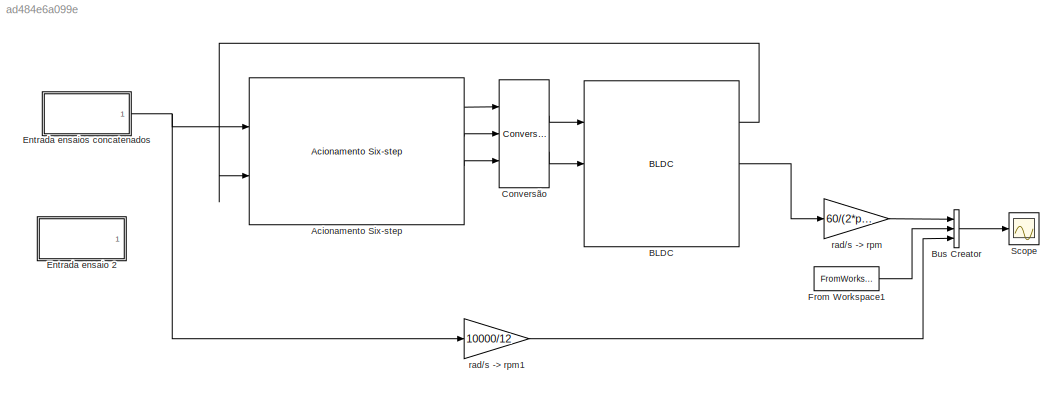
MODEL slx_ad484e6a099e
KIND model
BLOCK [Reference] Acionamento Six-step  REF=BLDC/Acionamento Six-step
  P = 8
  Ports = [2, 4]
  SourceBlock = BLDC/Acionamento Six-step
  SourceType = Acionamento six-step
BLOCK [Reference] BLDC  REF=BLDC/BLDC
  F_slip = 0
  F_stick = 0
  J = 3.84*10^-7
  Kd = 0
  Ke = 11.3*10^-3
  Kt = 11.3*10^-3
  L = 2.35*10^-3/sqrt(3)
  P = 8
  Ports = [3, 3]
  R = 23.9/sqrt(3)
  SourceBlock = BLDC/BLDC
  SourceType = Simulador de um motor BLDC
  default_fcem = on
  fcem_a = fcem_a
  fcem_b = fcem_b
  fcem_c = fcem_c
BLOCK [BusCreator] Bus Creator
  DisplayOption = bar
  Inputs = 3
  Ports = [3, 1]
BLOCK [Reference] Conversão  REF=BLDC/Conversão
  Ports = [3, 2]
  SourceBlock = BLDC/Conversão
  SourceType = SubSystem
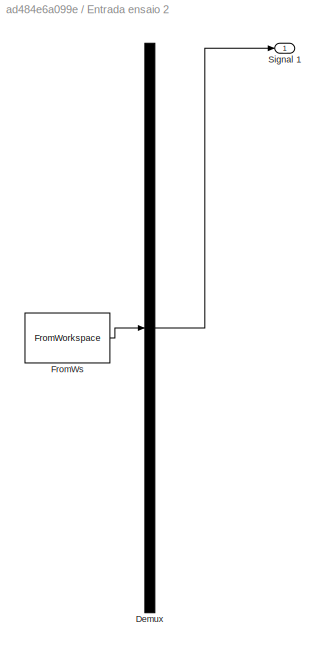
BLOCK [SubSystem] Entrada ensaio 2
  ClipboardFcn = sigbuilder_block('clipboard');
  CloseFcn = sigbuilder_block('close');
  ContinueFcn = sigbuilder_block('continue');
  CopyFcn = sigbuilder_block('copy');
  DeleteFcn = sigbuilder_block('delete');
  FunctionWithSeparateData = off
  LoadFcn = sigbuilder_block('load');
  MaskHideContents = on
  MinAlgLoopOccurrences = off
  ModelCloseFcn = sigbuilder_block('modelClose');
  NameChangeFcn = sigbuilder_block('namechange');
  Opaque = off
  OpenFcn = sigbuilder_block('open',[0 30 1440 723 ]);
  PauseFcn = sigbuilder_block('pause');
  Ports = [0, 1]
  PreSaveFcn = sigbuilder_block('preSave');
  PropExecContextOutsideSubsystem = off
  RTWSystemCode = Auto
  RequestExecContextInheritance = off
  StartFcn = sigbuilder_block('start');
  StopFcn = sigbuilder_block('stop');
  Tag = STV Subsys
BLOCK [Demux] Entrada ensaio 2/Demux
  Outputs = 1
  Ports = [1, 1]
  Tag = STV Demux
BLOCK [FromWorkspace] Entrada ensaio 2/FromWs
  SampleTime = 0
  Tag = STV FromWs
  VariableName = tuvar
  ZeroCross = on
BLOCK [Outport] Entrada ensaio 2/Signal 1
  IconDisplay = Port number
  Tag = STV Outport
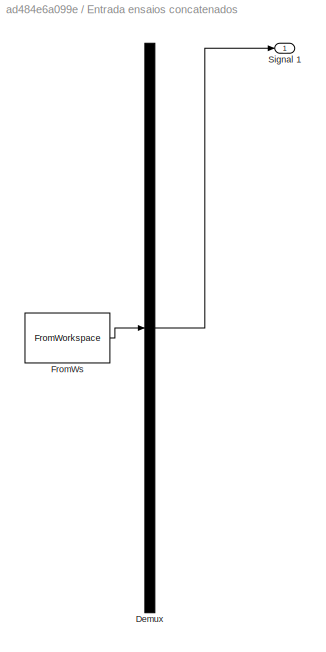
BLOCK [SubSystem] Entrada ensaios concatenados
  ClipboardFcn = sigbuilder_block('clipboard');
  CloseFcn = sigbuilder_block('close');
  ContinueFcn = sigbuilder_block('continue');
  CopyFcn = sigbuilder_block('copy');
  DeleteFcn = sigbuilder_block('delete');
  FunctionWithSeparateData = off
  LoadFcn = sigbuilder_block('load');
  MaskHideContents = on
  MinAlgLoopOccurrences = off
  ModelCloseFcn = sigbuilder_block('modelClose');
  NameChangeFcn = sigbuilder_block('namechange');
  Opaque = off
  OpenFcn = sigbuilder_block('open',[6 28.5 1428 718.5 ]);
  PauseFcn = sigbuilder_block('pause');
  Ports = [0, 1]
  PreSaveFcn = sigbuilder_block('preSave');
  PropExecContextOutsideSubsystem = off
  RTWSystemCode = Auto
  RequestExecContextInheritance = off
  StartFcn = sigbuilder_block('start');
  StopFcn = sigbuilder_block('stop');
  Tag = STV Subsys
BLOCK [Demux] Entrada ensaios concatenados/Demux
  Outputs = 1
  Ports = [1, 1]
  Tag = STV Demux
BLOCK [FromWorkspace] Entrada ensaios concatenados/FromWs
  SampleTime = 0
  Tag = STV FromWs
  VariableName = tuvar
  ZeroCross = on
BLOCK [Outport] Entrada ensaios concatenados/Signal 1
  IconDisplay = Port number
  Tag = STV Outport
BLOCK [FromWorkspace] From Workspace1
  SampleTime = 0
  VariableName = w_m
  ZeroCross = on
BLOCK [Scope] Scope
  DataFormat = StructureWithTime
  Floating = off
  LimitDataPoints = off
  NumInputPorts = 1
  Ports = [1]
  SampleTime = 0
  ShowLegends = off
  TimeRange = 5
  YMax = 10000
  YMin = 8200
  ZoomMode = yonly
BLOCK [Gain] rad//s -> rpm
  Gain = 60/(2*pi)
  OutDataTypeStr = Inherit: Inherit via internal rule
  ParamDataTypeStr = Inherit: Inherit via internal rule
  SaturateOnIntegerOverflow = off
BLOCK [Gain] rad//s -> rpm1
  Gain = 10000/12
  OutDataTypeStr = Inherit: Inherit via internal rule
  ParamDataTypeStr = Inherit: Inherit via internal rule
  SaturateOnIntegerOverflow = off
LINE Acionamento Six-step:1 -> Conversão:1
LINE Acionamento Six-step:2 -> Conversão:2
LINE Acionamento Six-step:3 -> Conversão:3
LINE BLDC:1 -> Acionamento Six-step:2
LINE BLDC:2 -> rad//s -> rpm:1
LINE Bus Creator:1 -> Scope:1
LINE Conversão:1 -> BLDC:1
LINE Conversão:2 -> BLDC:2
NET Entrada ensaios concatenados:1 -> Acionamento Six-step:1, rad//s -> rpm1:1
LINE From Workspace1:1 -> Bus Creator:2
LINE rad//s -> rpm1:1 -> Bus Creator:3
LINE rad//s -> rpm:1 -> Bus Creator:1
note: NET lines group one-source signal fan-out (src -> all destinations, sorted); 1:1 wires keep LINE
